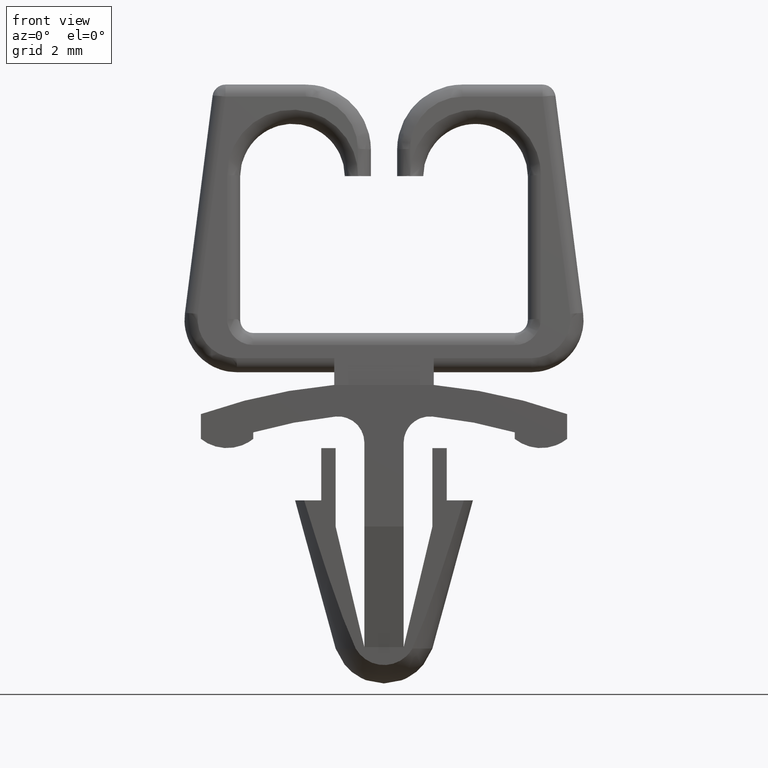
[diagram: clean part render]
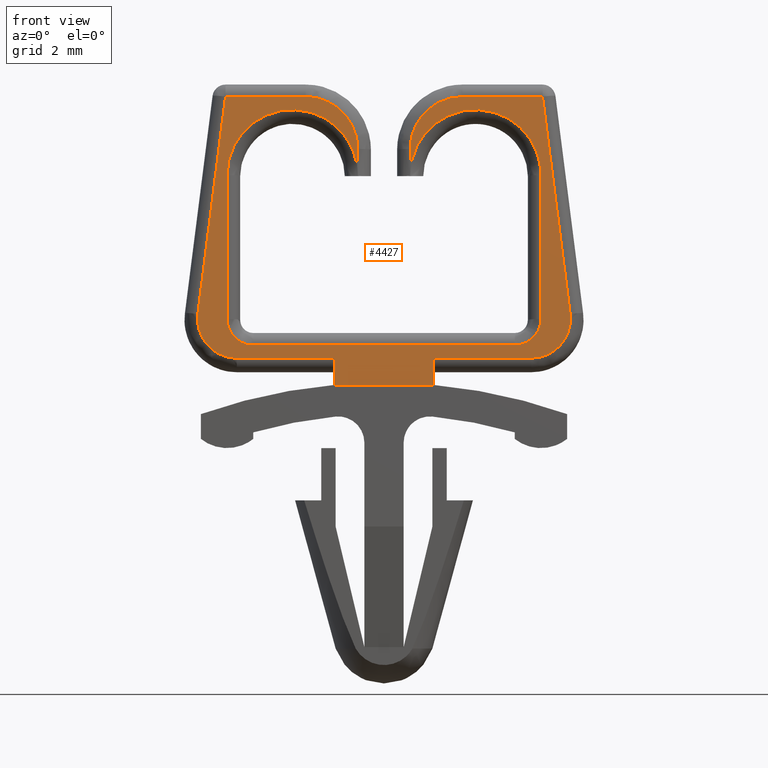
[diagram: same view with one face highlighted and labeled with its STEP entity id]
A machine part, front view. The second image highlights one B-rep face of the part: STEP entity #4427.
In plain terms, the highlighted face is a freeform B-spline surface patch.
Its self-contained STEP definition (entity closure, byte-faithful):
#2069=CARTESIAN_POINT('',(1.0,-1.817478079133525,6.038521504060430));
#2070=VERTEX_POINT('',#2069);
#2078=CARTESIAN_POINT('',(0.999999999999958,-1.740205398863230,7.038521504060429));
#2079=VERTEX_POINT('',#2078);
#2080=CARTESIAN_POINT('',(0.999999999999958,-1.740205398863230,7.038521504060429));
#2081=CARTESIAN_POINT('',(1.0,-1.817478079133525,6.038521504060430));
#2082=QUASI_UNIFORM_CURVE('',1,(#2080,#2081),.UNSPECIFIED.,.F.,.U.);
#2083=EDGE_CURVE('',#2079,#2070,#2082,.T.);
#2161=CARTESIAN_POINT('',(2.999999999999960,-1.585660038322570,9.038521504060519));
#2162=VERTEX_POINT('',#2161);
#2192=CARTESIAN_POINT('',(2.999999999999960,-1.585660038322570,9.038521504060519));
#2193=CARTESIAN_POINT('',(0.999999999999960,-1.585660038322626,9.038521504060430));
#2194=CARTESIAN_POINT('',(0.999999999999958,-1.740205398863230,7.038521504060429));
#2202=(BOUNDED_CURVE()B_SPLINE_CURVE(2,(#2192,#2193,#2194),.UNSPECIFIED.,.F.,.U.)CURVE()GEOMETRIC_REPRESENTATION_ITEM()QUASI_UNIFORM_CURVE()RATIONAL_B_SPLINE_CURVE((1.0,0.707106781186546,1.0))REPRESENTATION_ITEM(''));
#2203=EDGE_CURVE('',#2162,#2079,#2202,.T.);
#2222=CARTESIAN_POINT('',(6.059603151179160,-1.585660036844600,9.038521523187201));
#2223=VERTEX_POINT('',#2222);
#2245=CARTESIAN_POINT('',(6.059603151179160,-1.585660036844600,9.038521523187201));
#2246=CARTESIAN_POINT('',(2.999999999999960,-1.585660038322570,9.038521504060519));
#2247=QUASI_UNIFORM_CURVE('',1,(#2245,#2246),.UNSPECIFIED.,.F.,.U.);
#2248=EDGE_CURVE('',#2223,#2162,#2247,.T.);
#2323=CARTESIAN_POINT('',(7.117317864791390,-2.227843809044990,0.727902945524262));
#2324=VERTEX_POINT('',#2323);
#2346=CARTESIAN_POINT('',(7.117317864791390,-2.227843809044990,0.727902945524262));
#2347=CARTESIAN_POINT('',(6.059603151179160,-1.585660036844600,9.038521523187201));
#2348=QUASI_UNIFORM_CURVE('',1,(#2346,#2347),.UNSPECIFIED.,.F.,.U.);
#2349=EDGE_CURVE('',#2324,#2223,#2348,.T.);
#2392=CARTESIAN_POINT('',(5.629321000000000,-2.358386841025850,-0.961478495939570));
#2393=VERTEX_POINT('',#2392);
#2427=CARTESIAN_POINT('',(5.629321000000000,-2.358386841025850,-0.961478495939570));
#2428=CARTESIAN_POINT('',(6.307016156375546,-2.358386841025811,-0.961478495939571));
#2429=CARTESIAN_POINT('',(6.754947972445967,-2.319089461593010,-0.452923864531370));
#2430=CARTESIAN_POINT('',(7.202879788516388,-2.279792082160211,0.055630766876832));
#2431=CARTESIAN_POINT('',(7.117317864791390,-2.227843809044990,0.727902945524262));
#2439=(BOUNDED_CURVE()B_SPLINE_CURVE(2,(#2427,#2428,#2429,#2430,#2431),.UNSPECIFIED.,.F.,.U.)B_SPLINE_CURVE_WITH_KNOTS((3,2,3),(0.0,0.500000000000000,1.0),.UNSPECIFIED.)CURVE()GEOMETRIC_REPRESENTATION_ITEM()RATIONAL_B_SPLINE_CURVE((1.0,0.911307735910652,1.0,0.911307735910652,1.0))REPRESENTATION_ITEM(''));
#2440=EDGE_CURVE('',#2393,#2324,#2439,.T.);
#2461=CARTESIAN_POINT('',(1.900000000000000,-2.358386841025850,-0.961478495939570));
#2462=VERTEX_POINT('',#2461);
#2484=CARTESIAN_POINT('',(1.900000000000000,-2.358386841025850,-0.961478495939570));
#2485=CARTESIAN_POINT('',(5.629321000000000,-2.358386841025850,-0.961478495939570));
#2486=QUASI_UNIFORM_CURVE('',1,(#2484,#2485),.UNSPECIFIED.,.F.,.U.);
#2487=EDGE_CURVE('',#2462,#2393,#2486,.T.);
#2600=CARTESIAN_POINT('',(-6.0,-1.817478079133555,6.038521504060430));
#2601=VERTEX_POINT('',#2600);
#2663=CARTESIAN_POINT('',(-1.000000000000014,-1.817478079133525,6.038521504060430));
#2664=VERTEX_POINT('',#2663);
#2678=CARTESIAN_POINT('',(-6.0,-1.817478079133555,6.038521504060430));
#2679=CARTESIAN_POINT('',(-6.0,-1.705944567632919,7.481897236731053));
#2680=CARTESIAN_POINT('',(-4.749999922451897,-1.650177815342301,8.203585058293946));
#2681=CARTESIAN_POINT('',(-3.499999844903795,-1.594411063051682,8.925272879856836));
#2682=CARTESIAN_POINT('',(-2.249999844903801,-1.650177825721355,8.203584923976688));
#2683=CARTESIAN_POINT('',(-0.999999844903805,-1.705944588391027,7.481896968096542));
#2684=CARTESIAN_POINT('',(-1.000000000000014,-1.817478079133525,6.038521504060430));
#2692=(BOUNDED_CURVE()B_SPLINE_CURVE(2,(#2678,#2679,#2680,#2681,#2682,#2683,#2684),.UNSPECIFIED.,.F.,.U.)B_SPLINE_CURVE_WITH_KNOTS((3,2,2,3),(0.0,0.333333333333333,0.666666666666667,1.0),.UNSPECIFIED.)CURVE()GEOMETRIC_REPRESENTATION_ITEM()RATIONAL_B_SPLINE_CURVE((1.0,0.866025394829954,1.0,0.866025394829954,1.0,0.866025394829954,1.0))REPRESENTATION_ITEM(''));
#2693=EDGE_CURVE('',#2601,#2664,#2692,.T.);
#2712=CARTESIAN_POINT('',(-6.0,-2.242477820620355,0.538521504060430));
#2713=VERTEX_POINT('',#2712);
#2737=CARTESIAN_POINT('',(-6.0,-2.242477820620355,0.538521504060430));
#2738=CARTESIAN_POINT('',(-6.0,-1.817478079133555,6.038521504060430));
#2739=QUASI_UNIFORM_CURVE('',1,(#2737,#2738),.UNSPECIFIED.,.F.,.U.);
#2740=EDGE_CURVE('',#2713,#2601,#2739,.T.);
#2951=CARTESIAN_POINT('',(-5.0,-2.319750500890685,-0.461478495939573));
#2952=VERTEX_POINT('',#2951);
#2982=CARTESIAN_POINT('',(-5.0,-2.319750500890685,-0.461478495939573));
#2983=CARTESIAN_POINT('',(-6.0,-2.319750500890648,-0.461478495939572));
#2984=CARTESIAN_POINT('',(-6.0,-2.242477820620355,0.538521504060430));
#2992=(BOUNDED_CURVE()B_SPLINE_CURVE(2,(#2982,#2983,#2984),.UNSPECIFIED.,.F.,.U.)CURVE()GEOMETRIC_REPRESENTATION_ITEM()QUASI_UNIFORM_CURVE()RATIONAL_B_SPLINE_CURVE((1.0,0.707106781186547,1.0))REPRESENTATION_ITEM(''));
#2993=EDGE_CURVE('',#2952,#2713,#2992,.T.);
#3012=CARTESIAN_POINT('',(5.0,-2.319750500890685,-0.461478495939573));
#3013=VERTEX_POINT('',#3012);
#3035=CARTESIAN_POINT('',(5.0,-2.319750500890685,-0.461478495939573));
#3036=CARTESIAN_POINT('',(-5.0,-2.319750500890685,-0.461478495939573));
#3037=QUASI_UNIFORM_CURVE('',1,(#3035,#3036),.UNSPECIFIED.,.F.,.U.);
#3038=EDGE_CURVE('',#3013,#2952,#3037,.T.);
#3459=CARTESIAN_POINT('',(6.0,-2.242477820620355,0.538521504060430));
#3460=VERTEX_POINT('',#3459);
#3492=CARTESIAN_POINT('',(6.0,-2.242477820620355,0.538521504060430));
#3493=CARTESIAN_POINT('',(6.0,-2.319750500890648,-0.461478495939572));
#3494=CARTESIAN_POINT('',(5.0,-2.319750500890685,-0.461478495939573));
#3502=(BOUNDED_CURVE()B_SPLINE_CURVE(2,(#3492,#3493,#3494),.UNSPECIFIED.,.F.,.U.)CURVE()GEOMETRIC_REPRESENTATION_ITEM()QUASI_UNIFORM_CURVE()RATIONAL_B_SPLINE_CURVE((1.0,0.707106781186548,1.0))REPRESENTATION_ITEM(''));
#3503=EDGE_CURVE('',#3460,#3013,#3502,.T.);
#3522=CARTESIAN_POINT('',(6.0,-1.817478079133555,6.038521504060430));
#3523=VERTEX_POINT('',#3522);
#3547=CARTESIAN_POINT('',(6.0,-1.817478079133555,6.038521504060430));
#3548=CARTESIAN_POINT('',(6.0,-2.242477820620355,0.538521504060430));
#3549=QUASI_UNIFORM_CURVE('',1,(#3547,#3548),.UNSPECIFIED.,.F.,.U.);
#3550=EDGE_CURVE('',#3523,#3460,#3549,.T.);
#3706=CARTESIAN_POINT('',(1.0,-1.817478079133525,6.038521504060430));
#3707=CARTESIAN_POINT('',(1.000000000000000,-1.705944572245831,7.481897177034496));
#3708=CARTESIAN_POINT('',(2.250000000000001,-1.650177818801985,8.203585013521531));
#3709=CARTESIAN_POINT('',(3.500000000000001,-1.594411065358138,8.925272850008561));
#3710=CARTESIAN_POINT('',(4.750000000000002,-1.650177818801985,8.203585013521527));
#3711=CARTESIAN_POINT('',(6.0,-1.705944572245831,7.481897177034495));
#3712=CARTESIAN_POINT('',(6.0,-1.817478079133555,6.038521504060430));
#3720=(BOUNDED_CURVE()B_SPLINE_CURVE(2,(#3706,#3707,#3708,#3709,#3710,#3711,#3712),.UNSPECIFIED.,.F.,.U.)B_SPLINE_CURVE_WITH_KNOTS((3,2,2,3),(0.0,0.333333333333333,0.666666666666667,1.0),.UNSPECIFIED.)CURVE()GEOMETRIC_REPRESENTATION_ITEM()RATIONAL_B_SPLINE_CURVE((1.0,0.866025403784437,1.0,0.866025403784437,1.0,0.866025403784437,1.0))REPRESENTATION_ITEM(''));
#3721=EDGE_CURVE('',#2070,#3523,#3720,.T.);
#3753=CARTESIAN_POINT('',(-1.900000000000000,-2.358386841025850,-0.961478495939570));
#3754=VERTEX_POINT('',#3753);
#3772=CARTESIAN_POINT('',(-5.629321000000000,-2.358386841025850,-0.961478495939573));
#3773=VERTEX_POINT('',#3772);
#3774=CARTESIAN_POINT('',(-5.629321000000000,-2.358386841025850,-0.961478495939573));
#3775=CARTESIAN_POINT('',(-1.900000000000000,-2.358386841025850,-0.961478495939570));
#3776=QUASI_UNIFORM_CURVE('',1,(#3774,#3775),.UNSPECIFIED.,.F.,.U.);
#3777=EDGE_CURVE('',#3773,#3754,#3776,.T.);
#3842=CARTESIAN_POINT('',(-7.117318057241341,-2.227843784646445,0.727903261270297));
#3843=VERTEX_POINT('',#3842);
#3875=CARTESIAN_POINT('',(-7.117318057241341,-2.227843784646445,0.727903261270297));
#3876=CARTESIAN_POINT('',(-7.202879903080703,-2.279792063703412,0.055631005729671));
#3877=CARTESIAN_POINT('',(-6.754948077636017,-2.319089452364612,-0.452923745104950));
#3878=CARTESIAN_POINT('',(-6.307016252191331,-2.358386841025810,-0.961478495939571));
#3879=CARTESIAN_POINT('',(-5.629321000000000,-2.358386841025850,-0.961478495939573));
#3887=(BOUNDED_CURVE()B_SPLINE_CURVE(2,(#3875,#3876,#3877,#3878,#3879),.UNSPECIFIED.,.F.,.U.)B_SPLINE_CURVE_WITH_KNOTS((3,2,3),(0.0,0.500000000000000,1.0),.UNSPECIFIED.)CURVE()GEOMETRIC_REPRESENTATION_ITEM()RATIONAL_B_SPLINE_CURVE((1.0,0.911307714069070,1.0,0.911307714069070,1.0))REPRESENTATION_ITEM(''));
#3888=EDGE_CURVE('',#3843,#3773,#3887,.T.);
#3907=CARTESIAN_POINT('',(-6.059603000000000,-1.585660038322570,9.038521504060519));
#3908=VERTEX_POINT('',#3907);
#3930=CARTESIAN_POINT('',(-6.059603000000000,-1.585660038322570,9.038521504060519));
#3931=CARTESIAN_POINT('',(-7.117318057241341,-2.227843784646445,0.727903261270297));
#3932=QUASI_UNIFORM_CURVE('',1,(#3930,#3931),.UNSPECIFIED.,.F.,.U.);
#3933=EDGE_CURVE('',#3908,#3843,#3932,.T.);
#4008=CARTESIAN_POINT('',(-3.0,-1.585660038322575,9.038521504060432));
#4009=VERTEX_POINT('',#4008);
#4031=CARTESIAN_POINT('',(-3.0,-1.585660038322575,9.038521504060432));
#4032=CARTESIAN_POINT('',(-6.059603000000000,-1.585660038322570,9.038521504060519));
#4033=QUASI_UNIFORM_CURVE('',1,(#4031,#4032),.UNSPECIFIED.,.F.,.U.);
#4034=EDGE_CURVE('',#4009,#3908,#4033,.T.);
#4077=CARTESIAN_POINT('',(-1.000000000000028,-1.740205398863230,7.038521504060429));
#4078=VERTEX_POINT('',#4077);
#4110=CARTESIAN_POINT('',(-1.000000000000028,-1.740205398863230,7.038521504060429));
#4111=CARTESIAN_POINT('',(-1.0,-1.585660038322626,9.038521504060430));
#4112=CARTESIAN_POINT('',(-3.0,-1.585660038322575,9.038521504060432));
#4120=(BOUNDED_CURVE()B_SPLINE_CURVE(2,(#4110,#4111,#4112),.UNSPECIFIED.,.F.,.U.)CURVE()GEOMETRIC_REPRESENTATION_ITEM()QUASI_UNIFORM_CURVE()RATIONAL_B_SPLINE_CURVE((1.0,0.707106781186546,1.0))REPRESENTATION_ITEM(''));
#4121=EDGE_CURVE('',#4078,#4009,#4120,.T.);
#4163=CARTESIAN_POINT('',(-1.000000000000014,-1.817478079133525,6.038521504060430));
#4164=CARTESIAN_POINT('',(-1.000000000000028,-1.740205398863230,7.038521504060429));
#4165=QUASI_UNIFORM_CURVE('',1,(#4163,#4164),.UNSPECIFIED.,.F.,.U.);
#4166=EDGE_CURVE('',#2664,#4078,#4165,.T.);
#4382=CARTESIAN_POINT('',(-7.841388112105603,-1.543107661295085,9.589199659375270));
#4383=CARTESIAN_POINT('',(-7.841388112105603,-2.480111375549521,-2.536738136187978));
#4384=CARTESIAN_POINT('',(7.841387382318748,-1.543107661295085,9.589199659375270));
#4385=CARTESIAN_POINT('',(7.841387382318748,-2.480111375549521,-2.536738136187978));
#4386=B_SPLINE_SURFACE_WITH_KNOTS('',1,1,((#4382,#4384),(#4383,#4385)),.UNSPECIFIED.,.F.,.F.,.U.,(2,2),(2,2),(0.0,12.162086308787480),(0.0,15.682775494424350),.UNSPECIFIED.);
#4387=ORIENTED_EDGE('',*,*,#3777,.T.);
#4388=CARTESIAN_POINT('',(-1.899990384634510,-2.437559000000000,-1.986059999999910));
#4389=VERTEX_POINT('',#4388);
#4390=CARTESIAN_POINT('',(-1.899990384634510,-2.437559000000000,-1.986059999999910));
#4391=CARTESIAN_POINT('',(-1.900000000000000,-2.358386841025850,-0.961478495939570));
#4392=QUASI_UNIFORM_CURVE('',1,(#4390,#4391),.UNSPECIFIED.,.F.,.U.);
#4393=EDGE_CURVE('',#4389,#3754,#4392,.T.);
#4394=ORIENTED_EDGE('',*,*,#4393,.F.);
#4395=CARTESIAN_POINT('',(1.900005599020525,-2.437559000000000,-1.986058984180150));
#4396=VERTEX_POINT('',#4395);
#4397=CARTESIAN_POINT('',(1.900005599020525,-2.437559000000000,-1.986058984180150));
#4398=CARTESIAN_POINT('',(-1.899990384634510,-2.437559000000000,-1.986059999999910));
#4399=QUASI_UNIFORM_CURVE('',1,(#4397,#4398),.UNSPECIFIED.,.F.,.U.);
#4400=EDGE_CURVE('',#4396,#4389,#4399,.T.);
#4401=ORIENTED_EDGE('',*,*,#4400,.F.);
#4402=CARTESIAN_POINT('',(1.900000000000000,-2.358386841025850,-0.961478495939570));
#4403=CARTESIAN_POINT('',(1.900005599020525,-2.437559000000000,-1.986058984180150));
#4404=QUASI_UNIFORM_CURVE('',1,(#4402,#4403),.UNSPECIFIED.,.F.,.U.);
#4405=EDGE_CURVE('',#2462,#4396,#4404,.T.);
#4406=ORIENTED_EDGE('',*,*,#4405,.F.);
#4407=ORIENTED_EDGE('',*,*,#2487,.T.);
#4408=ORIENTED_EDGE('',*,*,#2440,.T.);
#4409=ORIENTED_EDGE('',*,*,#2349,.T.);
#4410=ORIENTED_EDGE('',*,*,#2248,.T.);
#4411=ORIENTED_EDGE('',*,*,#2203,.T.);
#4412=ORIENTED_EDGE('',*,*,#2083,.T.);
#4413=ORIENTED_EDGE('',*,*,#3721,.T.);
#4414=ORIENTED_EDGE('',*,*,#3550,.T.);
#4415=ORIENTED_EDGE('',*,*,#3503,.T.);
#4416=ORIENTED_EDGE('',*,*,#3038,.T.);
#4417=ORIENTED_EDGE('',*,*,#2993,.T.);
#4418=ORIENTED_EDGE('',*,*,#2740,.T.);
#4419=ORIENTED_EDGE('',*,*,#2693,.T.);
#4420=ORIENTED_EDGE('',*,*,#4166,.T.);
#4421=ORIENTED_EDGE('',*,*,#4121,.T.);
#4422=ORIENTED_EDGE('',*,*,#4034,.T.);
#4423=ORIENTED_EDGE('',*,*,#3933,.T.);
#4424=ORIENTED_EDGE('',*,*,#3888,.T.);
#4425=EDGE_LOOP('',(#4387,#4394,#4401,#4406,#4407,#4408,#4409,#4410,#4411,#4412,#4413,#4414,#4415,#4416,#4417,#4418,#4419,#4420,#4421,#4422,#4423,#4424));
#4426=FACE_OUTER_BOUND('',#4425,.T.);
#4427=ADVANCED_FACE('',(#4426),#4386,.T.);